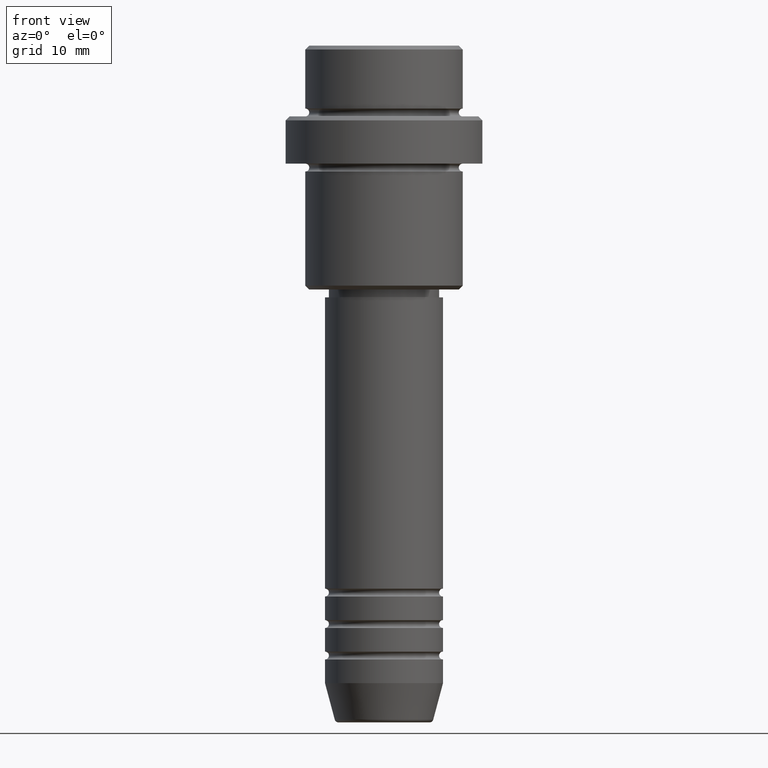
[diagram: clean part render]
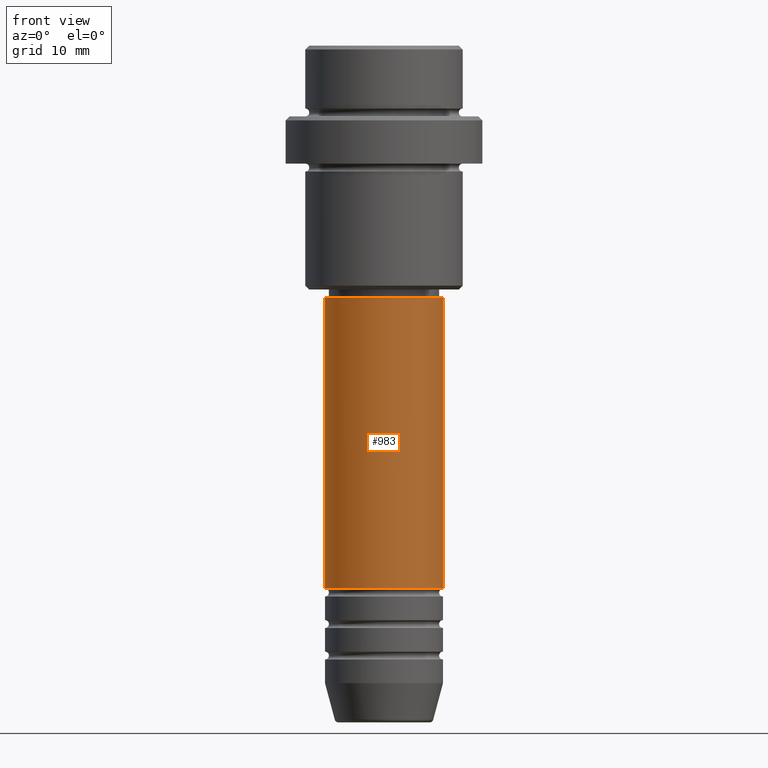
[diagram: same view with one face highlighted and labeled with its STEP entity id]
A machine part, front view. The second image highlights one B-rep face of the part: STEP entity #983.
In plain terms, the highlighted cylindrical surface (partial cylindrical patch) has radius 7.5 mm, axis along (-0, -0, 1).
Its self-contained STEP definition (entity closure, byte-faithful):
#15 = CARTESIAN_POINT ( 'NONE',  ( 0.000000000000000000, 0.000000000000000000, -68.99999999999990052 ) ) ;
#41 = EDGE_CURVE ( 'NONE', #1121, #371, #880, .T. ) ;
#112 = VECTOR ( 'NONE', #954, 1000.000000000000000 ) ;
#135 = ORIENTED_EDGE ( 'NONE', *, *, #1088, .F. ) ;
#159 = CARTESIAN_POINT ( 'NONE',  ( 7.500000000000000000, 0.000000000000000000, -32.00000000000000000 ) ) ;
#227 = DIRECTION ( 'NONE',  ( 1.000000000000000000, 0.000000000000000000, 0.000000000000000000 ) ) ;
#265 = AXIS2_PLACEMENT_3D ( 'NONE', #15, #892, #227 ) ;
#305 = CARTESIAN_POINT ( 'NONE',  ( -7.500000000000000000, 9.184850993605147944E-16, -68.99999999999990052 ) ) ;
#308 = CARTESIAN_POINT ( 'NONE',  ( -7.500000000000000000, 9.184850993605147944E-16, -32.00000000000000000 ) ) ;
#340 = VERTEX_POINT ( 'NONE', #159 ) ;
#371 = VERTEX_POINT ( 'NONE', #727 ) ;
#407 = AXIS2_PLACEMENT_3D ( 'NONE', #696, #1055, #1161 ) ;
#409 = DIRECTION ( 'NONE',  ( -0.000000000000000000, -0.000000000000000000, 1.000000000000000000 ) ) ;
#429 = ORIENTED_EDGE ( 'NONE', *, *, #1308, .F. ) ;
#498 = LINE ( 'NONE', #1256, #1326 ) ;
#578 = ORIENTED_EDGE ( 'NONE', *, *, #1066, .T. ) ;
#655 = EDGE_LOOP ( 'NONE', ( #135, #1183, #578, #429 ) ) ;
#688 = AXIS2_PLACEMENT_3D ( 'NONE', #926, #1347, #1354 ) ;
#696 = CARTESIAN_POINT ( 'NONE',  ( 0.000000000000000000, 0.000000000000000000, -32.00000000000000000 ) ) ;
#727 = CARTESIAN_POINT ( 'NONE',  ( 7.500000000000000000, 0.000000000000000000, -68.99999999999990052 ) ) ;
#834 = CARTESIAN_POINT ( 'NONE',  ( -7.500000000000000000, 9.184850993605147944E-16, 0.000000000000000000 ) ) ;
#880 = CIRCLE ( 'NONE', #265, 7.500000000000000000 ) ;
#892 = DIRECTION ( 'NONE',  ( -0.000000000000000000, -0.000000000000000000, 1.000000000000000000 ) ) ;
#921 = CYLINDRICAL_SURFACE ( 'NONE', #688, 7.500000000000000000 ) ;
#926 = CARTESIAN_POINT ( 'NONE',  ( 0.000000000000000000, 0.000000000000000000, 0.000000000000000000 ) ) ;
#954 = DIRECTION ( 'NONE',  ( -0.000000000000000000, -0.000000000000000000, 1.000000000000000000 ) ) ;
#983 = ADVANCED_FACE ( 'NONE', ( #1359 ), #921, .T. ) ;
#1055 = DIRECTION ( 'NONE',  ( -0.000000000000000000, -0.000000000000000000, 1.000000000000000000 ) ) ;
#1059 = CIRCLE ( 'NONE', #407, 7.500000000000000000 ) ;
#1060 = LINE ( 'NONE', #834, #112 ) ;
#1066 = EDGE_CURVE ( 'NONE', #371, #340, #498, .T. ) ;
#1088 = EDGE_CURVE ( 'NONE', #1121, #1417, #1060, .T. ) ;
#1121 = VERTEX_POINT ( 'NONE', #305 ) ;
#1161 = DIRECTION ( 'NONE',  ( 1.000000000000000000, 0.000000000000000000, 0.000000000000000000 ) ) ;
#1183 = ORIENTED_EDGE ( 'NONE', *, *, #41, .T. ) ;
#1256 = CARTESIAN_POINT ( 'NONE',  ( 7.500000000000000000, 0.000000000000000000, 0.000000000000000000 ) ) ;
#1308 = EDGE_CURVE ( 'NONE', #1417, #340, #1059, .T. ) ;
#1326 = VECTOR ( 'NONE', #409, 1000.000000000000000 ) ;
#1347 = DIRECTION ( 'NONE',  ( -0.000000000000000000, -0.000000000000000000, 1.000000000000000000 ) ) ;
#1354 = DIRECTION ( 'NONE',  ( 1.000000000000000000, 0.000000000000000000, 0.000000000000000000 ) ) ;
#1359 = FACE_OUTER_BOUND ( 'NONE', #655, .T. ) ;
#1417 = VERTEX_POINT ( 'NONE', #308 ) ;